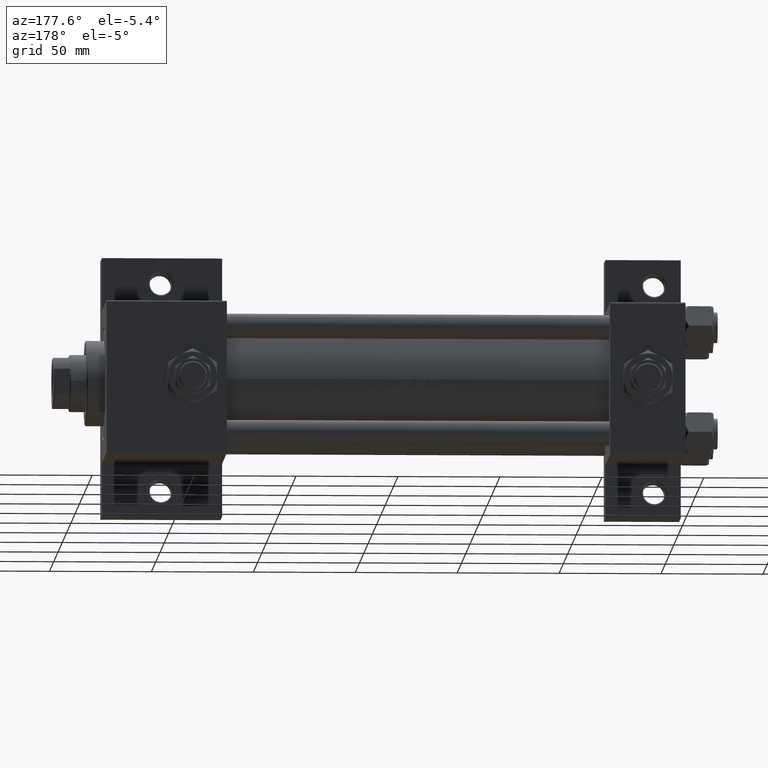
[diagram: clean part render]
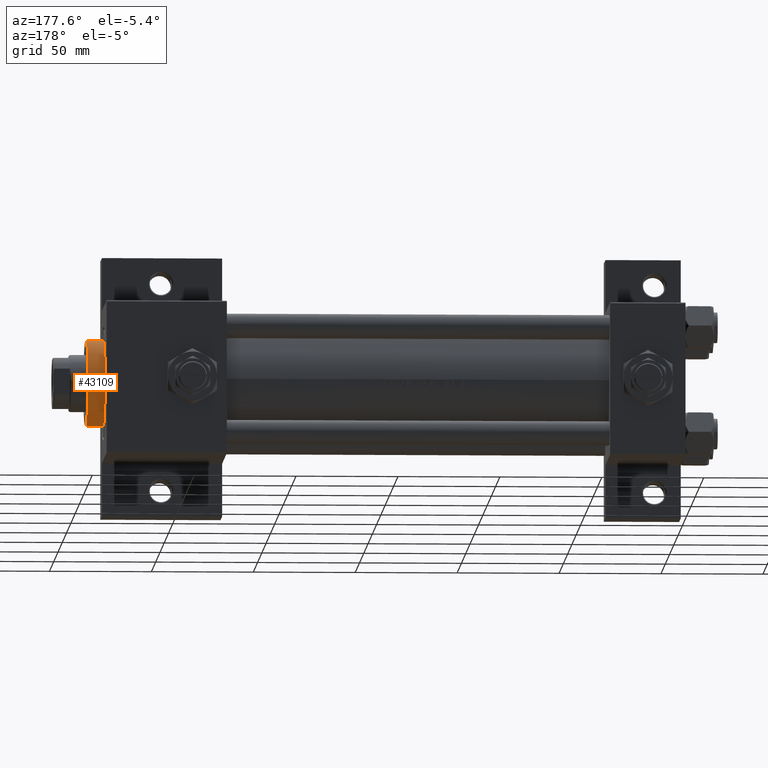
[diagram: same view with one face highlighted and labeled with its STEP entity id]
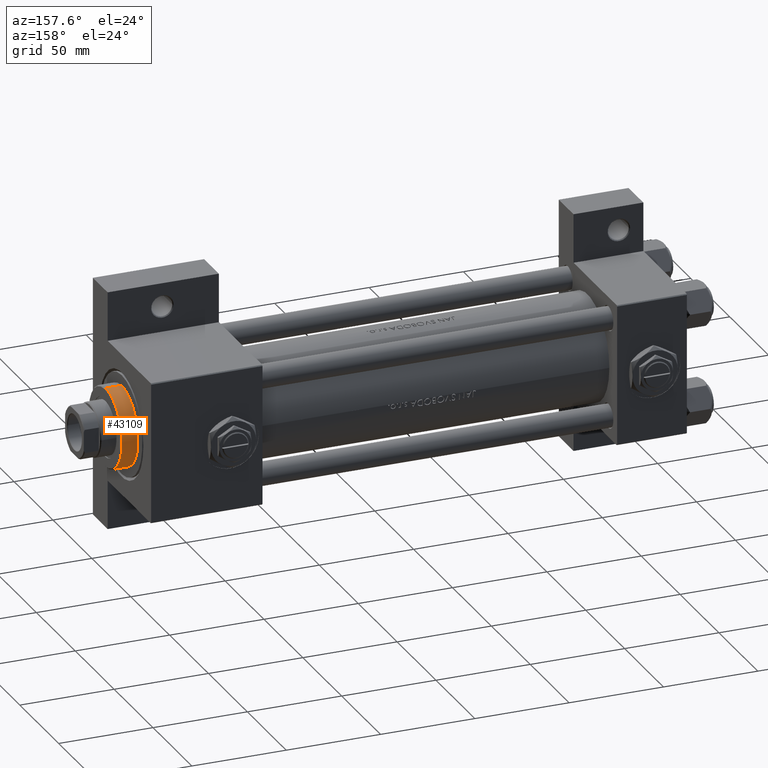
[diagram: same view with one face highlighted and labeled with its STEP entity id]
A machine part, auxiliary view. The second image highlights one B-rep face of the part: STEP entity #43109.
A second angle (auxiliary view) of the same face is appended — the face is thin or edge-on in the first view.
In plain terms, the highlighted cylindrical surface (partial cylindrical patch) has radius 21 mm, axis along (-1, -0, 0).
Its self-contained STEP definition (entity closure, byte-faithful):
#808 = DIRECTION ( 'NONE',  ( -0.000000000000000000, -0.000000000000000000, -1.000000000000000000 ) ) ;
#1291 = DIRECTION ( 'NONE',  ( -0.000000000000000000, -0.000000000000000000, -1.000000000000000000 ) ) ;
#5149 = VECTOR ( 'NONE', #1291, 1000.000000000000000 ) ;
#8627 = DIRECTION ( 'NONE',  ( 0.000000000000000000, 0.000000000000000000, 1.000000000000000000 ) ) ;
#8946 = CARTESIAN_POINT ( 'NONE',  ( -21.00000000000000000, 0.000000000000000000, 28.69999999999999929 ) ) ;
#9715 = EDGE_CURVE ( 'NONE', #40763, #39631, #38061, .T. ) ;
#16403 = CYLINDRICAL_SURFACE ( 'NONE', #24347, 21.00000000000000000 ) ;
#16693 = AXIS2_PLACEMENT_3D ( 'NONE', #28097, #20677, #39020 ) ;
#17081 = EDGE_CURVE ( 'NONE', #39631, #21903, #18736, .T. ) ;
#18736 = LINE ( 'NONE', #37820, #35004 ) ;
#19029 = EDGE_CURVE ( 'NONE', #21903, #31756, #48502, .T. ) ;
#20119 = LINE ( 'NONE', #35236, #5149 ) ;
#20677 = DIRECTION ( 'NONE',  ( 0.000000000000000000, 0.000000000000000000, -1.000000000000000000 ) ) ;
#21903 = VERTEX_POINT ( 'NONE', #46638 ) ;
#24347 = AXIS2_PLACEMENT_3D ( 'NONE', #31533, #808, #38476 ) ;
#27107 = AXIS2_PLACEMENT_3D ( 'NONE', #27450, #8627, #45823 ) ;
#27397 = ORIENTED_EDGE ( 'NONE', *, *, #19029, .T. ) ;
#27450 = CARTESIAN_POINT ( 'NONE',  ( 0.000000000000000000, 0.000000000000000000, 28.69999999999999929 ) ) ;
#28097 = CARTESIAN_POINT ( 'NONE',  ( 0.000000000000000000, 0.000000000000000000, 37.19999999999999574 ) ) ;
#31533 = CARTESIAN_POINT ( 'NONE',  ( 0.000000000000000000, 0.000000000000000000, 37.69999999999999574 ) ) ;
#31756 = VERTEX_POINT ( 'NONE', #8946 ) ;
#33201 = EDGE_CURVE ( 'NONE', #40763, #31756, #20119, .T. ) ;
#35004 = VECTOR ( 'NONE', #48079, 1000.000000000000000 ) ;
#35236 = CARTESIAN_POINT ( 'NONE',  ( -21.00000000000000000, 0.000000000000000000, 37.69999999999999574 ) ) ;
#35495 = FACE_OUTER_BOUND ( 'NONE', #46860, .T. ) ;
#35948 = ORIENTED_EDGE ( 'NONE', *, *, #33201, .F. ) ;
#37820 = CARTESIAN_POINT ( 'NONE',  ( 21.00000000000000000, 2.571758278209441661E-15, 37.69999999999999574 ) ) ;
#38061 = CIRCLE ( 'NONE', #16693, 21.00000000000000000 ) ;
#38476 = DIRECTION ( 'NONE',  ( -1.000000000000000000, 0.000000000000000000, 0.000000000000000000 ) ) ;
#39020 = DIRECTION ( 'NONE',  ( 1.000000000000000000, 0.000000000000000000, 0.000000000000000000 ) ) ;
#39631 = VERTEX_POINT ( 'NONE', #39908 ) ;
#39908 = CARTESIAN_POINT ( 'NONE',  ( 21.00000000000000000, 2.571758278209441661E-15, 37.19999999999999574 ) ) ;
#40202 = ORIENTED_EDGE ( 'NONE', *, *, #9715, .T. ) ;
#40763 = VERTEX_POINT ( 'NONE', #42425 ) ;
#42425 = CARTESIAN_POINT ( 'NONE',  ( -21.00000000000000000, 0.000000000000000000, 37.19999999999999574 ) ) ;
#43109 = ADVANCED_FACE ( 'NONE', ( #35495 ), #16403, .T. ) ;
#45030 = ORIENTED_EDGE ( 'NONE', *, *, #17081, .T. ) ;
#45823 = DIRECTION ( 'NONE',  ( 1.000000000000000000, 0.000000000000000000, 0.000000000000000000 ) ) ;
#46638 = CARTESIAN_POINT ( 'NONE',  ( 21.00000000000000000, 2.571758278209441661E-15, 28.69999999999999929 ) ) ;
#46860 = EDGE_LOOP ( 'NONE', ( #40202, #45030, #27397, #35948 ) ) ;
#48079 = DIRECTION ( 'NONE',  ( -0.000000000000000000, -0.000000000000000000, -1.000000000000000000 ) ) ;
#48502 = CIRCLE ( 'NONE', #27107, 21.00000000000000000 ) ;